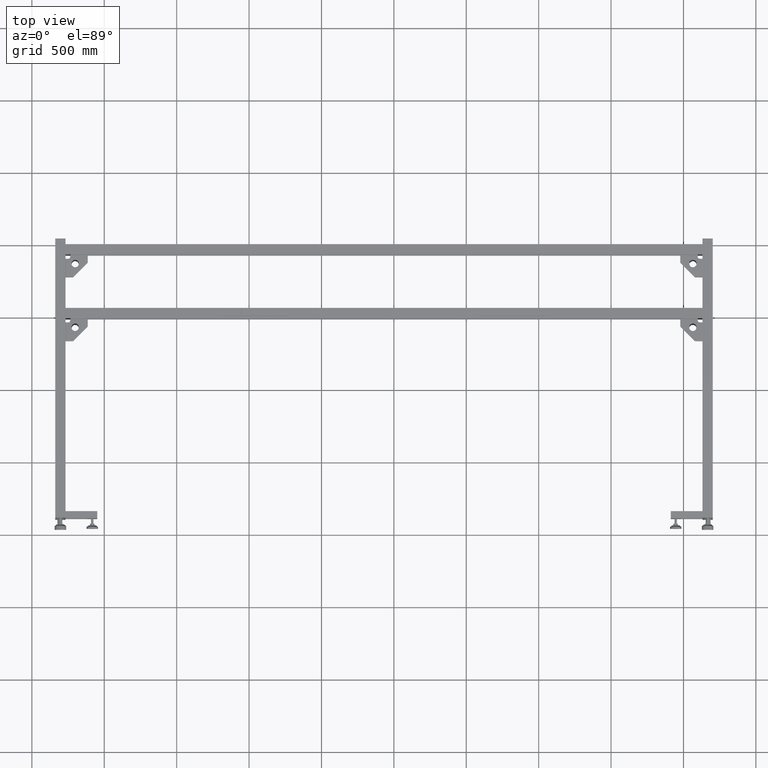
[diagram: clean part render]
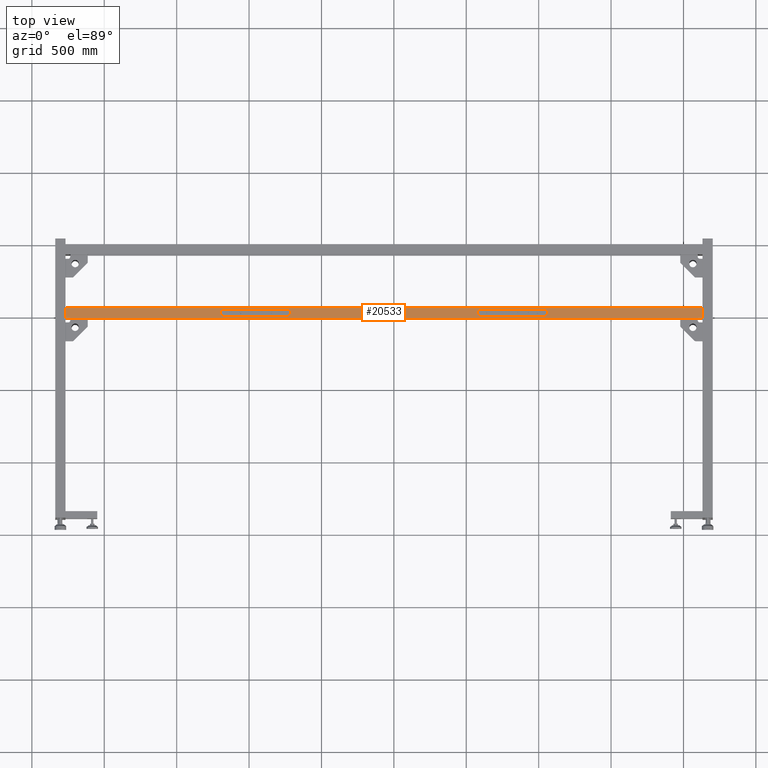
[diagram: same view with one face highlighted and labeled with its STEP entity id]
A machine part, top view. The second image highlights one B-rep face of the part: STEP entity #20533.
In plain terms, the highlighted planar face has unit normal (0, 0, -1).
Its self-contained STEP definition (entity closure, byte-faithful):
#39 = CARTESIAN_POINT ( 'NONE',  ( 2054.827512562816537, 516.9410804020112664, 300.0000000000000000 ) ) ;
#43 = DIRECTION ( 'NONE',  ( -1.000000000000000000, -0.000000000000000000, 0.000000000000000000 ) ) ;
#171 = CARTESIAN_POINT ( 'NONE',  ( 273.8275125628138085, 516.9410804020108117, 300.0000000000000000 ) ) ;
#370 = VERTEX_POINT ( 'NONE', #8050 ) ;
#417 = ORIENTED_EDGE ( 'NONE', *, *, #73845, .T. ) ;
#582 = LINE ( 'NONE', #25557, #76562 ) ;
#592 = EDGE_CURVE ( 'NONE', #370, #1744, #17395, .T. ) ;
#631 = VECTOR ( 'NONE', #70821, 1000.000000000000000 ) ;
#682 = VECTOR ( 'NONE', #66665, 1000.000000000000000 ) ;
#709 = ORIENTED_EDGE ( 'NONE', *, *, #79897, .T. ) ;
#721 = EDGE_CURVE ( 'NONE', #8913, #61710, #50116, .T. ) ;
#1045 = VERTEX_POINT ( 'NONE', #12369 ) ;
#1185 = VECTOR ( 'NONE', #35818, 1000.000000000000000 ) ;
#1264 = ORIENTED_EDGE ( 'NONE', *, *, #59474, .F. ) ;
#1292 = EDGE_CURVE ( 'NONE', #32178, #6360, #40889, .T. ) ;
#1403 = DIRECTION ( 'NONE',  ( -1.035296940874237648E-30, 2.999999999999999839E-15, -1.000000000000000000 ) ) ;
#1584 = CIRCLE ( 'NONE', #29016, 2.600000000000046718 ) ;
#1663 = ORIENTED_EDGE ( 'NONE', *, *, #78849, .F. ) ;
#1712 = EDGE_CURVE ( 'NONE', #49883, #8913, #34236, .T. ) ;
#1744 = VERTEX_POINT ( 'NONE', #41996 ) ;
#2129 = DIRECTION ( 'NONE',  ( 0.000000000000000000, -1.000000000000000000, 0.000000000000000000 ) ) ;
#2246 = EDGE_CURVE ( 'NONE', #67937, #50732, #68344, .T. ) ;
#2327 = CARTESIAN_POINT ( 'NONE',  ( 2041.827512562816764, 546.4410804020112664, 300.0000000000000568 ) ) ;
#2343 = AXIS2_PLACEMENT_3D ( 'NONE', #171, #37421, #73844 ) ;
#2365 = EDGE_CURVE ( 'NONE', #12435, #30571, #44310, .T. ) ;
#2399 = CIRCLE ( 'NONE', #27245, 2.600000000000046718 ) ;
#2501 = FACE_BOUND ( 'NONE', #21742, .T. ) ;
#2547 = AXIS2_PLACEMENT_3D ( 'NONE', #31817, #26501, #7258 ) ;
#2589 = CARTESIAN_POINT ( 'NONE',  ( 274.8275125628136948, 537.9410804020139949, 300.0000000000000568 ) ) ;
#2628 = EDGE_CURVE ( 'NONE', #5057, #61710, #50073, .T. ) ;
#2673 = LINE ( 'NONE', #26424, #8887 ) ;
#2749 = EDGE_CURVE ( 'NONE', #4048, #40761, #68743, .T. ) ;
#2927 = DIRECTION ( 'NONE',  ( 1.183016475227565433E-14, -1.000000000000000000, -3.957088814332020186E-15 ) ) ;
#2988 = CIRCLE ( 'NONE', #12093, 2.600000000000046718 ) ;
#2998 = AXIS2_PLACEMENT_3D ( 'NONE', #5029, #47242, #16515 ) ;
#3016 = DIRECTION ( 'NONE',  ( 8.326672684688670898E-15, -1.000000000000000000, -2.999999999999999839E-15 ) ) ;
#3100 = DIRECTION ( 'NONE',  ( -1.035296940874237648E-30, 2.999999999999999839E-15, -1.000000000000000000 ) ) ;
#3118 = EDGE_CURVE ( 'NONE', #27731, #11802, #16197, .T. ) ;
#3126 = CARTESIAN_POINT ( 'NONE',  ( -187.1724874371862768, 535.3410804020107889, 300.0000000000000568 ) ) ;
#3485 = AXIS2_PLACEMENT_3D ( 'NONE', #54700, #79634, #53892 ) ;
#3633 = CARTESIAN_POINT ( 'NONE',  ( 2054.827512562816537, 526.9410804020112664, 300.0000000000000568 ) ) ;
#4020 = EDGE_LOOP ( 'NONE', ( #57272, #41109, #38458, #52919 ) ) ;
#4048 = VERTEX_POINT ( 'NONE', #30584 ) ;
#4117 = VERTEX_POINT ( 'NONE', #27710 ) ;
#4120 = VERTEX_POINT ( 'NONE', #76368 ) ;
#4132 = DIRECTION ( 'NONE',  ( 0.000000000000000000, -1.000000000000000000, 0.000000000000000000 ) ) ;
#4842 = VECTOR ( 'NONE', #75769, 1000.000000000000000 ) ;
#4894 = CARTESIAN_POINT ( 'NONE',  ( 2429.827512562815627, 556.9410804020112664, 300.0000000000001137 ) ) ;
#5016 = LINE ( 'NONE', #54953, #70289 ) ;
#5019 = ORIENTED_EDGE ( 'NONE', *, *, #14925, .T. ) ;
#5029 = CARTESIAN_POINT ( 'NONE',  ( 1589.827512562816537, 516.9410804020110390, 300.0000000000000000 ) ) ;
#5057 = VERTEX_POINT ( 'NONE', #3633 ) ;
#5572 = ORIENTED_EDGE ( 'NONE', *, *, #47312, .F. ) ;
#5731 = DIRECTION ( 'NONE',  ( -1.000000000000000000, 1.092267369640097868E-16, 0.000000000000000000 ) ) ;
#5739 = DIRECTION ( 'NONE',  ( -1.035296940874237648E-30, 2.999999999999999839E-15, -1.000000000000000000 ) ) ;
#5833 = DIRECTION ( 'NONE',  ( -1.000000000000000000, 1.092267369640097868E-16, 0.000000000000000000 ) ) ;
#6360 = VERTEX_POINT ( 'NONE', #71694 ) ;
#6388 = CARTESIAN_POINT ( 'NONE',  ( 1589.827512562816537, 531.9410804020110390, 300.0000000000000568 ) ) ;
#6748 = CIRCLE ( 'NONE', #52507, 2.600000000000046718 ) ;
#6749 = CARTESIAN_POINT ( 'NONE',  ( -186.1724874371861631, 516.9410804020108117, 300.0000000000000000 ) ) ;
#7258 = DIRECTION ( 'NONE',  ( 0.000000000000000000, -1.000000000000000000, 0.000000000000000000 ) ) ;
#7853 = CARTESIAN_POINT ( 'NONE',  ( 2049.827512562816537, 531.9410804020112664, 300.0000000000000568 ) ) ;
#7883 = EDGE_CURVE ( 'NONE', #18050, #15926, #5016, .T. ) ;
#8050 = CARTESIAN_POINT ( 'NONE',  ( -186.1724874371861631, 511.9410804020108117, 299.9999999999999432 ) ) ;
#8381 = AXIS2_PLACEMENT_3D ( 'NONE', #38726, #3100, #51826 ) ;
#8575 = DIRECTION ( 'NONE',  ( -1.035296940874237648E-30, 2.999999999999999839E-15, -1.000000000000000000 ) ) ;
#8689 = CARTESIAN_POINT ( 'NONE',  ( -1266.172487437185964, 486.9410804020108117, 299.9999999999998863 ) ) ;
#8887 = VECTOR ( 'NONE', #20695, 1000.000000000000000 ) ;
#8913 = VERTEX_POINT ( 'NONE', #16113 ) ;
#9463 = EDGE_CURVE ( 'NONE', #56099, #4120, #74469, .T. ) ;
#9667 = DIRECTION ( 'NONE',  ( 0.000000000000000000, 1.000000000000000000, 0.000000000000000000 ) ) ;
#9787 = ORIENTED_EDGE ( 'NONE', *, *, #21536, .F. ) ;
#9832 = EDGE_LOOP ( 'NONE', ( #25172, #47207 ) ) ;
#9896 = ORIENTED_EDGE ( 'NONE', *, *, #22224, .F. ) ;
#9926 = DIRECTION ( 'NONE',  ( 0.000000000000000000, -1.000000000000000000, 0.000000000000000000 ) ) ;
#10073 = DIRECTION ( 'NONE',  ( 1.000000000000000000, 3.450989802914125775E-16, 0.000000000000000000 ) ) ;
#10197 = LINE ( 'NONE', #66258, #682 ) ;
#10448 = AXIS2_PLACEMENT_3D ( 'NONE', #2589, #27573, #52526 ) ;
#10490 = ORIENTED_EDGE ( 'NONE', *, *, #33100, .F. ) ;
#10907 = EDGE_CURVE ( 'NONE', #46456, #45400, #69833, .T. ) ;
#11019 = ORIENTED_EDGE ( 'NONE', *, *, #9463, .T. ) ;
#11036 = FACE_BOUND ( 'NONE', #9832, .T. ) ;
#11244 = CARTESIAN_POINT ( 'NONE',  ( -178.1724874371861631, 546.4410804020108117, 300.0000000000000568 ) ) ;
#11359 = CARTESIAN_POINT ( 'NONE',  ( -178.1724874371861631, 497.4410804020108117, 299.9999999999999432 ) ) ;
#11802 = VERTEX_POINT ( 'NONE', #65222 ) ;
#11863 = VERTEX_POINT ( 'NONE', #34502 ) ;
#11935 = EDGE_CURVE ( 'NONE', #66057, #77684, #1584, .T. ) ;
#12093 = AXIS2_PLACEMENT_3D ( 'NONE', #17126, #78141, #35547 ) ;
#12241 = DIRECTION ( 'NONE',  ( -1.092267369640097868E-16, -1.000000000000000000, -3.396508223080412663E-15 ) ) ;
#12369 = CARTESIAN_POINT ( 'NONE',  ( 2041.827512562816764, 497.4410804020112096, 299.9999999999999432 ) ) ;
#12414 = ORIENTED_EDGE ( 'NONE', *, *, #46702, .F. ) ;
#12435 = VERTEX_POINT ( 'NONE', #49802 ) ;
#12562 = CARTESIAN_POINT ( 'NONE',  ( 2054.827512562816537, 511.9410804020112664, 299.9999999999999432 ) ) ;
#12681 = CARTESIAN_POINT ( 'NONE',  ( 265.8275125628138085, 531.9410804020108117, 300.0000000000000568 ) ) ;
#13219 = CIRCLE ( 'NONE', #55046, 2.600000000000046718 ) ;
#13516 = VERTEX_POINT ( 'NONE', #35610 ) ;
#13598 = CARTESIAN_POINT ( 'NONE',  ( -178.1724874371861631, 497.4410804020108117, 299.9999999999999432 ) ) ;
#13599 = VERTEX_POINT ( 'NONE', #62184 ) ;
#13697 = EDGE_CURVE ( 'NONE', #21257, #4117, #42976, .T. ) ;
#13931 = EDGE_LOOP ( 'NONE', ( #31895, #30169 ) ) ;
#13951 = CARTESIAN_POINT ( 'NONE',  ( 265.8275125628138085, 531.9410804020108117, 300.0000000000000568 ) ) ;
#14041 = DIRECTION ( 'NONE',  ( 1.035296940874237648E-30, -2.999999999999999839E-15, 1.000000000000000000 ) ) ;
#14925 = EDGE_CURVE ( 'NONE', #13516, #21949, #13219, .T. ) ;
#15450 = DIRECTION ( 'NONE',  ( 0.000000000000000000, 1.000000000000000000, 0.000000000000000000 ) ) ;
#15833 = ORIENTED_EDGE ( 'NONE', *, *, #1292, .F. ) ;
#15926 = VERTEX_POINT ( 'NONE', #11244 ) ;
#16113 = CARTESIAN_POINT ( 'NONE',  ( 2041.827512562816764, 531.9410804020112664, 300.0000000000000568 ) ) ;
#16197 = CIRCLE ( 'NONE', #8381, 2.600000000000046718 ) ;
#16295 = AXIS2_PLACEMENT_3D ( 'NONE', #49545, #5739, #62217 ) ;
#16515 = DIRECTION ( 'NONE',  ( 0.000000000000000000, 1.000000000000000000, 0.000000000000000000 ) ) ;
#16578 = CIRCLE ( 'NONE', #59710, 5.000000000000004441 ) ;
#16853 = EDGE_CURVE ( 'NONE', #21949, #13516, #26613, .T. ) ;
#17126 = CARTESIAN_POINT ( 'NONE',  ( -187.1724874371862768, 505.9410804020108117, 299.9999999999999432 ) ) ;
#17340 = VECTOR ( 'NONE', #10073, 1000.000000000000000 ) ;
#17395 = LINE ( 'NONE', #48917, #1185 ) ;
#17583 = ORIENTED_EDGE ( 'NONE', *, *, #75935, .T. ) ;
#17986 = FACE_BOUND ( 'NONE', #13931, .T. ) ;
#18050 = VERTEX_POINT ( 'NONE', #30294 ) ;
#18134 = CARTESIAN_POINT ( 'NONE',  ( 1588.827512562816537, 505.9410804020141086, 299.9999999999999432 ) ) ;
#18697 = DIRECTION ( 'NONE',  ( -1.000000000000000000, 1.406644989705434807E-14, 4.323464663203728341E-29 ) ) ;
#18732 = DIRECTION ( 'NONE',  ( 0.000000000000000000, 1.000000000000000000, 3.957088814332028864E-15 ) ) ;
#19414 = CARTESIAN_POINT ( 'NONE',  ( -191.1724874371862768, 516.9410804020108117, 300.0000000000000000 ) ) ;
#19633 = ORIENTED_EDGE ( 'NONE', *, *, #13697, .F. ) ;
#20533 = ADVANCED_FACE ( 'NONE', ( #39739, #64705, #34006, #2501, #11036, #35989, #30667, #17986, #67499, #29469, #49495 ), #62164, .F. ) ;
#20695 = DIRECTION ( 'NONE',  ( -3.450989802914125775E-16, 1.000000000000000000, 3.957088814332035175E-15 ) ) ;
#21257 = VERTEX_POINT ( 'NONE', #60681 ) ;
#21536 = EDGE_CURVE ( 'NONE', #68494, #42039, #76163, .T. ) ;
#21742 = EDGE_LOOP ( 'NONE', ( #53403, #27000 ) ) ;
#21949 = VERTEX_POINT ( 'NONE', #51951 ) ;
#22224 = EDGE_CURVE ( 'NONE', #67877, #46920, #74755, .T. ) ;
#22451 = VERTEX_POINT ( 'NONE', #55456 ) ;
#22789 = VECTOR ( 'NONE', #28078, 1000.000000000000000 ) ;
#22992 = CIRCLE ( 'NONE', #3485, 5.000000000000004441 ) ;
#23077 = CARTESIAN_POINT ( 'NONE',  ( 2054.827512562816537, 531.9410804020112664, 300.0000000000000568 ) ) ;
#23544 = DIRECTION ( 'NONE',  ( 3.828355257328120833E-15, -1.000000000000000000, -3.957088814332029653E-15 ) ) ;
#23674 = CIRCLE ( 'NONE', #36759, 2.600000000000046718 ) ;
#23760 = ORIENTED_EDGE ( 'NONE', *, *, #592, .F. ) ;
#24040 = DIRECTION ( 'NONE',  ( 0.000000000000000000, 2.999999999999999839E-15, -1.000000000000000000 ) ) ;
#24048 = EDGE_CURVE ( 'NONE', #4048, #12435, #59572, .T. ) ;
#24190 = DIRECTION ( 'NONE',  ( 0.000000000000000000, -1.000000000000000000, 0.000000000000000000 ) ) ;
#25172 = ORIENTED_EDGE ( 'NONE', *, *, #45979, .T. ) ;
#25453 = CARTESIAN_POINT ( 'NONE',  ( 273.8275125628138085, 511.9410804020108117, 299.9999999999999432 ) ) ;
#25557 = CARTESIAN_POINT ( 'NONE',  ( -191.1724874371862768, 531.9410804020108117, 300.0000000000000568 ) ) ;
#26372 = EDGE_CURVE ( 'NONE', #40761, #30571, #72587, .T. ) ;
#26424 = CARTESIAN_POINT ( 'NONE',  ( 1597.827512562816537, 546.4410804020110390, 300.0000000000000568 ) ) ;
#26501 = DIRECTION ( 'NONE',  ( -1.035296940874237648E-30, 2.999999999999999839E-15, -1.000000000000000000 ) ) ;
#26613 = CIRCLE ( 'NONE', #42256, 2.600000000000046718 ) ;
#26675 = VECTOR ( 'NONE', #5731, 1000.000000000000000 ) ;
#26735 = VERTEX_POINT ( 'NONE', #33149 ) ;
#27000 = ORIENTED_EDGE ( 'NONE', *, *, #3118, .T. ) ;
#27245 = AXIS2_PLACEMENT_3D ( 'NONE', #48605, #67824, #42881 ) ;
#27573 = DIRECTION ( 'NONE',  ( 0.000000000000000000, -2.999999999999999839E-15, 1.000000000000000000 ) ) ;
#27710 = CARTESIAN_POINT ( 'NONE',  ( -186.1724874371861631, 531.9410804020108117, 300.0000000000000568 ) ) ;
#27731 = VERTEX_POINT ( 'NONE', #56201 ) ;
#27818 = DIRECTION ( 'NONE',  ( 0.000000000000000000, 1.000000000000000000, 2.999999999999999839E-15 ) ) ;
#28078 = DIRECTION ( 'NONE',  ( 3.450989802914125775E-16, -1.000000000000000000, -3.396508223080412663E-15 ) ) ;
#28215 = CARTESIAN_POINT ( 'NONE',  ( 278.8275125628136948, 531.9410804020108117, 300.0000000000000568 ) ) ;
#28669 = EDGE_CURVE ( 'NONE', #13599, #71147, #2673, .T. ) ;
#28768 = DIRECTION ( 'NONE',  ( 0.000000000000000000, -2.999999999999999839E-15, 1.000000000000000000 ) ) ;
#29016 = AXIS2_PLACEMENT_3D ( 'NONE', #73231, #30669, #67905 ) ;
#29033 = LINE ( 'NONE', #53977, #48722 ) ;
#29060 = CIRCLE ( 'NONE', #39510, 2.600000000000046718 ) ;
#29270 = EDGE_CURVE ( 'NONE', #11802, #27731, #53455, .T. ) ;
#29448 = VECTOR ( 'NONE', #70387, 1000.000000000000000 ) ;
#29469 = FACE_BOUND ( 'NONE', #53878, .T. ) ;
#30027 = VECTOR ( 'NONE', #37651, 1000.000000000000000 ) ;
#30095 = LINE ( 'NONE', #79201, #17340 ) ;
#30152 = CARTESIAN_POINT ( 'NONE',  ( 1589.827512562816537, 511.9410804020110390, 299.9999999999999432 ) ) ;
#30169 = ORIENTED_EDGE ( 'NONE', *, *, #80774, .F. ) ;
#30294 = CARTESIAN_POINT ( 'NONE',  ( 265.8275125628138085, 546.4410804020108117, 300.0000000000000568 ) ) ;
#30571 = VERTEX_POINT ( 'NONE', #8689 ) ;
#30584 = CARTESIAN_POINT ( 'NONE',  ( 3129.827512562816537, 556.9410804020114938, 300.0000000000001137 ) ) ;
#30667 = FACE_BOUND ( 'NONE', #44921, .T. ) ;
#30669 = DIRECTION ( 'NONE',  ( 0.000000000000000000, -2.999999999999999839E-15, 1.000000000000000000 ) ) ;
#31227 = DIRECTION ( 'NONE',  ( -1.035296940874237648E-30, 2.999999999999999839E-15, -1.000000000000000000 ) ) ;
#31817 = CARTESIAN_POINT ( 'NONE',  ( 2050.827512562816537, 537.9410804020112664, 300.0000000000000568 ) ) ;
#31895 = ORIENTED_EDGE ( 'NONE', *, *, #75055, .F. ) ;
#32039 = CARTESIAN_POINT ( 'NONE',  ( 1589.827512562816537, 526.9410804020110390, 300.0000000000000568 ) ) ;
#32178 = VERTEX_POINT ( 'NONE', #33163 ) ;
#32195 = ORIENTED_EDGE ( 'NONE', *, *, #74559, .T. ) ;
#32239 = VECTOR ( 'NONE', #47704, 1000.000000000000000 ) ;
#32411 = CARTESIAN_POINT ( 'NONE',  ( 265.8275125628138085, 511.9410804020108117, 299.9999999999999432 ) ) ;
#32439 = CARTESIAN_POINT ( 'NONE',  ( -187.1724874371862768, 537.9410804020108117, 300.0000000000000568 ) ) ;
#32646 = CIRCLE ( 'NONE', #10448, 2.600000000000046718 ) ;
#32811 = CARTESIAN_POINT ( 'NONE',  ( 274.8275125628136948, 535.3410804020138585, 300.0000000000000568 ) ) ;
#33100 = EDGE_CURVE ( 'NONE', #71318, #52098, #23674, .T. ) ;
#33149 = CARTESIAN_POINT ( 'NONE',  ( 274.8275125628136948, 540.5410804020141313, 300.0000000000000568 ) ) ;
#33163 = CARTESIAN_POINT ( 'NONE',  ( 278.8275125628136948, 516.9410804020108117, 300.0000000000000000 ) ) ;
#33234 = VERTEX_POINT ( 'NONE', #74911 ) ;
#33237 = EDGE_CURVE ( 'NONE', #58813, #66969, #38094, .T. ) ;
#33544 = DIRECTION ( 'NONE',  ( 0.000000000000000000, -1.000000000000000000, 0.000000000000000000 ) ) ;
#33746 = DIRECTION ( 'NONE',  ( -3.450989802914125775E-16, 1.000000000000000000, 2.999999999999999839E-15 ) ) ;
#34006 = FACE_BOUND ( 'NONE', #68759, .T. ) ;
#34236 = LINE ( 'NONE', #2327, #46075 ) ;
#34502 = CARTESIAN_POINT ( 'NONE',  ( -191.1724874371862768, 526.9410804020108117, 300.0000000000000568 ) ) ;
#34655 = CARTESIAN_POINT ( 'NONE',  ( 2041.827512562816764, 511.9410804020112664, 299.9999999999999432 ) ) ;
#35067 = DIRECTION ( 'NONE',  ( 0.000000000000000000, 2.999999999999999839E-15, -1.000000000000000000 ) ) ;
#35164 = AXIS2_PLACEMENT_3D ( 'NONE', #49159, #62238, #67579 ) ;
#35547 = DIRECTION ( 'NONE',  ( 0.000000000000000000, -1.000000000000000000, 0.000000000000000000 ) ) ;
#35610 = CARTESIAN_POINT ( 'NONE',  ( 2050.827512562816537, 503.3410804020113005, 299.9999999999999432 ) ) ;
#35633 = DIRECTION ( 'NONE',  ( 0.000000000000000000, -2.999999999999999839E-15, 1.000000000000000000 ) ) ;
#35818 = DIRECTION ( 'NONE',  ( 1.000000000000000000, 1.441154887734576138E-14, 4.323464663203728341E-29 ) ) ;
#35845 = VERTEX_POINT ( 'NONE', #44655 ) ;
#35989 = FACE_BOUND ( 'NONE', #63267, .T. ) ;
#36183 = CIRCLE ( 'NONE', #55830, 5.000000000000004441 ) ;
#36222 = CARTESIAN_POINT ( 'NONE',  ( 273.8275125628138085, 526.9410804020108117, 300.0000000000000568 ) ) ;
#36324 = DIRECTION ( 'NONE',  ( 1.000000000000000000, 6.251255769285789110E-17, 1.875376730785736675E-31 ) ) ;
#36602 = VECTOR ( 'NONE', #33746, 1000.000000000000000 ) ;
#36622 = ORIENTED_EDGE ( 'NONE', *, *, #28669, .T. ) ;
#36759 = AXIS2_PLACEMENT_3D ( 'NONE', #42626, #67585, #24190 ) ;
#37179 = ORIENTED_EDGE ( 'NONE', *, *, #62576, .F. ) ;
#37421 = DIRECTION ( 'NONE',  ( 0.000000000000000000, 2.999999999999999839E-15, -1.000000000000000000 ) ) ;
#37424 = EDGE_LOOP ( 'NONE', ( #1264, #59180 ) ) ;
#37651 = DIRECTION ( 'NONE',  ( -3.450989802914125775E-16, 1.000000000000000000, 3.957088814332028864E-15 ) ) ;
#37654 = CARTESIAN_POINT ( 'NONE',  ( 2429.827512562815627, 556.9410804020112664, 300.0000000000001137 ) ) ;
#37808 = ORIENTED_EDGE ( 'NONE', *, *, #43906, .T. ) ;
#37830 = EDGE_LOOP ( 'NONE', ( #62439, #44914 ) ) ;
#38094 = LINE ( 'NONE', #13951, #74719 ) ;
#38453 = CARTESIAN_POINT ( 'NONE',  ( 1597.827512562816537, 511.9410804020110390, 299.9999999999999432 ) ) ;
#38458 = ORIENTED_EDGE ( 'NONE', *, *, #2749, .T. ) ;
#38726 = CARTESIAN_POINT ( 'NONE',  ( 1588.827512562816537, 537.9410804020141086, 300.0000000000000568 ) ) ;
#38786 = CARTESIAN_POINT ( 'NONE',  ( 2049.827512562816537, 511.9410804020112664, 299.9999999999999432 ) ) ;
#39497 = VERTEX_POINT ( 'NONE', #39 ) ;
#39510 = AXIS2_PLACEMENT_3D ( 'NONE', #32439, #63938, #2129 ) ;
#39739 = FACE_OUTER_BOUND ( 'NONE', #4020, .T. ) ;
#39767 = EDGE_CURVE ( 'NONE', #1045, #56099, #65103, .T. ) ;
#40037 = AXIS2_PLACEMENT_3D ( 'NONE', #4894, #42147, #12241 ) ;
#40761 = VERTEX_POINT ( 'NONE', #49687 ) ;
#40889 = LINE ( 'NONE', #28215, #45270 ) ;
#40977 = AXIS2_PLACEMENT_3D ( 'NONE', #66162, #35067, #15450 ) ;
#41109 = ORIENTED_EDGE ( 'NONE', *, *, #24048, .F. ) ;
#41138 = CIRCLE ( 'NONE', #16295, 2.600000000000046718 ) ;
#41194 = VECTOR ( 'NONE', #48405, 1000.000000000000000 ) ;
#41372 = CARTESIAN_POINT ( 'NONE',  ( 274.8275125628136948, 508.5410804020140745, 299.9999999999999432 ) ) ;
#41578 = CARTESIAN_POINT ( 'NONE',  ( -187.1724874371862768, 508.5410804020107207, 299.9999999999999432 ) ) ;
#41996 = CARTESIAN_POINT ( 'NONE',  ( -178.1724874371861631, 511.9410804020108117, 299.9999999999999432 ) ) ;
#42039 = VERTEX_POINT ( 'NONE', #25453 ) ;
#42147 = DIRECTION ( 'NONE',  ( 3.709895102785004465E-31, 3.396508223080412663E-15, -1.000000000000000000 ) ) ;
#42256 = AXIS2_PLACEMENT_3D ( 'NONE', #61679, #68213, #73534 ) ;
#42626 = CARTESIAN_POINT ( 'NONE',  ( 274.8275125628136948, 505.9410804020138812, 299.9999999999999432 ) ) ;
#42738 = ORIENTED_EDGE ( 'NONE', *, *, #70513, .T. ) ;
#42881 = DIRECTION ( 'NONE',  ( 0.000000000000000000, -1.000000000000000000, 0.000000000000000000 ) ) ;
#42976 = LINE ( 'NONE', #61394, #67888 ) ;
#43906 = EDGE_CURVE ( 'NONE', #53291, #79818, #58765, .T. ) ;
#44291 = CARTESIAN_POINT ( 'NONE',  ( 1597.827512562816537, 546.4410804020110390, 300.0000000000000568 ) ) ;
#44310 = LINE ( 'NONE', #61899, #76229 ) ;
#44655 = CARTESIAN_POINT ( 'NONE',  ( 1584.827512562816537, 526.9410804020110390, 300.0000000000000568 ) ) ;
#44914 = ORIENTED_EDGE ( 'NONE', *, *, #11935, .F. ) ;
#44921 = EDGE_LOOP ( 'NONE', ( #19633, #37179, #73647, #53400, #70340, #73228, #15833, #42738, #9787, #49452, #9896, #58943, #23760, #709, #1663, #17583 ) ) ;
#45155 = AXIS2_PLACEMENT_3D ( 'NONE', #18134, #31227, #79524 ) ;
#45215 = CARTESIAN_POINT ( 'NONE',  ( 1588.827512562816537, 505.9410804020141086, 299.9999999999999432 ) ) ;
#45270 = VECTOR ( 'NONE', #27818, 1000.000000000000000 ) ;
#45400 = VERTEX_POINT ( 'NONE', #34655 ) ;
#45871 = EDGE_CURVE ( 'NONE', #5057, #39497, #53781, .T. ) ;
#45979 = EDGE_CURVE ( 'NONE', #22451, #33234, #70020, .T. ) ;
#46075 = VECTOR ( 'NONE', #58814, 1000.000000000000000 ) ;
#46456 = VERTEX_POINT ( 'NONE', #38786 ) ;
#46537 = ORIENTED_EDGE ( 'NONE', *, *, #2246, .F. ) ;
#46659 = CARTESIAN_POINT ( 'NONE',  ( 1597.827512562816537, 511.9410804020110390, 299.9999999999999432 ) ) ;
#46702 = EDGE_CURVE ( 'NONE', #46456, #39497, #22992, .T. ) ;
#46920 = VERTEX_POINT ( 'NONE', #51371 ) ;
#47045 = VECTOR ( 'NONE', #2927, 1000.000000000000000 ) ;
#47207 = ORIENTED_EDGE ( 'NONE', *, *, #62823, .T. ) ;
#47242 = DIRECTION ( 'NONE',  ( 1.035296940874237648E-30, -2.999999999999999839E-15, 1.000000000000000000 ) ) ;
#47312 = EDGE_CURVE ( 'NONE', #53955, #35845, #36183, .T. ) ;
#47542 = DIRECTION ( 'NONE',  ( 1.035296940874237648E-30, -2.999999999999999839E-15, 1.000000000000000000 ) ) ;
#47704 = DIRECTION ( 'NONE',  ( 0.000000000000000000, 1.000000000000000000, 3.957088814332035175E-15 ) ) ;
#48131 = VECTOR ( 'NONE', #49719, 1000.000000000000000 ) ;
#48171 = CARTESIAN_POINT ( 'NONE',  ( 2050.827512562816537, 535.3410804020112437, 300.0000000000000568 ) ) ;
#48405 = DIRECTION ( 'NONE',  ( 1.000000000000000000, 2.825864225985546864E-16, -1.875376730785736675E-31 ) ) ;
#48605 = CARTESIAN_POINT ( 'NONE',  ( 274.8275125628136948, 505.9410804020138812, 299.9999999999999432 ) ) ;
#48722 = VECTOR ( 'NONE', #18732, 1000.000000000000000 ) ;
#48917 = CARTESIAN_POINT ( 'NONE',  ( -191.1724874371862768, 511.9410804020108117, 299.9999999999999432 ) ) ;
#49100 = VECTOR ( 'NONE', #59132, 1000.000000000000000 ) ;
#49159 = CARTESIAN_POINT ( 'NONE',  ( 1588.827512562816537, 537.9410804020141086, 300.0000000000000568 ) ) ;
#49302 = ORIENTED_EDGE ( 'NONE', *, *, #64725, .T. ) ;
#49452 = ORIENTED_EDGE ( 'NONE', *, *, #75592, .F. ) ;
#49467 = CIRCLE ( 'NONE', #67751, 5.000000000000004441 ) ;
#49495 = FACE_BOUND ( 'NONE', #37830, .T. ) ;
#49507 = VECTOR ( 'NONE', #36324, 1000.000000000000000 ) ;
#49545 = CARTESIAN_POINT ( 'NONE',  ( 2050.827512562816537, 537.9410804020112664, 300.0000000000000568 ) ) ;
#49687 = CARTESIAN_POINT ( 'NONE',  ( -1266.172487437185964, 556.9410804020106980, 300.0000000000001137 ) ) ;
#49719 = DIRECTION ( 'NONE',  ( 1.000000000000000000, 3.450989802914125775E-16, 0.000000000000000000 ) ) ;
#49752 = ORIENTED_EDGE ( 'NONE', *, *, #2628, .F. ) ;
#49802 = CARTESIAN_POINT ( 'NONE',  ( 3129.827512562816537, 486.9410804020115506, 299.9999999999998863 ) ) ;
#49883 = VERTEX_POINT ( 'NONE', #62343 ) ;
#50073 = CIRCLE ( 'NONE', #77541, 5.000000000000004441 ) ;
#50116 = LINE ( 'NONE', #75878, #48131 ) ;
#50178 = ORIENTED_EDGE ( 'NONE', *, *, #39767, .T. ) ;
#50690 = CIRCLE ( 'NONE', #57248, 2.600000000000046718 ) ;
#50732 = VERTEX_POINT ( 'NONE', #30152 ) ;
#50899 = EDGE_LOOP ( 'NONE', ( #67855, #49752, #71427, #12414, #71759, #417, #50178, #11019, #72800, #46537, #32195, #5572, #55645, #36622, #53486, #73174 ) ) ;
#51344 = DIRECTION ( 'NONE',  ( 0.000000000000000000, 1.000000000000000000, 0.000000000000000000 ) ) ;
#51371 = CARTESIAN_POINT ( 'NONE',  ( 265.8275125628138085, 497.4410804020108117, 299.9999999999999432 ) ) ;
#51826 = DIRECTION ( 'NONE',  ( 0.000000000000000000, -1.000000000000000000, 0.000000000000000000 ) ) ;
#51951 = CARTESIAN_POINT ( 'NONE',  ( 2050.827512562816537, 508.5410804020111755, 299.9999999999999432 ) ) ;
#52098 = VERTEX_POINT ( 'NONE', #57950 ) ;
#52479 = CARTESIAN_POINT ( 'NONE',  ( -187.1724874371862768, 540.5410804020107207, 300.0000000000000568 ) ) ;
#52507 = AXIS2_PLACEMENT_3D ( 'NONE', #45215, #1403, #63208 ) ;
#52526 = DIRECTION ( 'NONE',  ( 0.000000000000000000, -1.000000000000000000, 0.000000000000000000 ) ) ;
#52919 = ORIENTED_EDGE ( 'NONE', *, *, #26372, .T. ) ;
#53291 = VERTEX_POINT ( 'NONE', #48171 ) ;
#53308 = CARTESIAN_POINT ( 'NONE',  ( -187.1724874371862768, 537.9410804020108117, 300.0000000000000568 ) ) ;
#53400 = ORIENTED_EDGE ( 'NONE', *, *, #55462, .F. ) ;
#53403 = ORIENTED_EDGE ( 'NONE', *, *, #29270, .T. ) ;
#53455 = CIRCLE ( 'NONE', #35164, 2.600000000000046718 ) ;
#53468 = CARTESIAN_POINT ( 'NONE',  ( -178.1724874371861631, 546.4410804020108117, 300.0000000000000568 ) ) ;
#53486 = ORIENTED_EDGE ( 'NONE', *, *, #77915, .T. ) ;
#53660 = LINE ( 'NONE', #59406, #47045 ) ;
#53781 = LINE ( 'NONE', #23077, #49100 ) ;
#53783 = VECTOR ( 'NONE', #23544, 1000.000000000000000 ) ;
#53878 = EDGE_LOOP ( 'NONE', ( #77654, #10490 ) ) ;
#53892 = DIRECTION ( 'NONE',  ( 0.000000000000000000, 1.000000000000000000, 0.000000000000000000 ) ) ;
#53955 = VERTEX_POINT ( 'NONE', #6388 ) ;
#53977 = CARTESIAN_POINT ( 'NONE',  ( 265.8275125628138085, 511.9410804020108117, 299.9999999999999432 ) ) ;
#54700 = CARTESIAN_POINT ( 'NONE',  ( 2049.827512562816537, 516.9410804020112664, 300.0000000000000000 ) ) ;
#54953 = CARTESIAN_POINT ( 'NONE',  ( -178.1724874371861631, 546.4410804020108117, 300.0000000000000568 ) ) ;
#55046 = AXIS2_PLACEMENT_3D ( 'NONE', #63829, #8575, #33544 ) ;
#55456 = CARTESIAN_POINT ( 'NONE',  ( 1588.827512562816537, 503.3410804020141995, 299.9999999999999432 ) ) ;
#55462 = EDGE_CURVE ( 'NONE', #66969, #18050, #77985, .T. ) ;
#55645 = ORIENTED_EDGE ( 'NONE', *, *, #66076, .T. ) ;
#55830 = AXIS2_PLACEMENT_3D ( 'NONE', #32039, #14041, #58638 ) ;
#56099 = VERTEX_POINT ( 'NONE', #69620 ) ;
#56201 = CARTESIAN_POINT ( 'NONE',  ( 1588.827512562816537, 540.5410804020143587, 300.0000000000000568 ) ) ;
#57248 = AXIS2_PLACEMENT_3D ( 'NONE', #53308, #28768, #9926 ) ;
#57272 = ORIENTED_EDGE ( 'NONE', *, *, #2365, .F. ) ;
#57299 = LINE ( 'NONE', #46659, #29448 ) ;
#57950 = CARTESIAN_POINT ( 'NONE',  ( 274.8275125628136948, 503.3410804020139722, 299.9999999999999432 ) ) ;
#58638 = DIRECTION ( 'NONE',  ( 0.000000000000000000, 1.000000000000000000, 0.000000000000000000 ) ) ;
#58765 = CIRCLE ( 'NONE', #2547, 2.600000000000046718 ) ;
#58813 = VERTEX_POINT ( 'NONE', #66990 ) ;
#58814 = DIRECTION ( 'NONE',  ( -3.483256277036708305E-15, -1.000000000000000000, -3.957088814332029653E-15 ) ) ;
#58943 = ORIENTED_EDGE ( 'NONE', *, *, #68493, .F. ) ;
#59123 = CARTESIAN_POINT ( 'NONE',  ( 1584.827512562816537, 531.9410804020110390, 300.0000000000000568 ) ) ;
#59132 = DIRECTION ( 'NONE',  ( -7.981573704397257581E-15, -1.000000000000000000, -2.999999999999999839E-15 ) ) ;
#59180 = ORIENTED_EDGE ( 'NONE', *, *, #75106, .F. ) ;
#59406 = CARTESIAN_POINT ( 'NONE',  ( 2041.827512562816764, 511.9410804020112664, 299.9999999999999432 ) ) ;
#59474 = EDGE_CURVE ( 'NONE', #61711, #26735, #32646, .T. ) ;
#59572 = LINE ( 'NONE', #71437, #22789 ) ;
#59710 = AXIS2_PLACEMENT_3D ( 'NONE', #6749, #24040, #51344 ) ;
#59830 = CARTESIAN_POINT ( 'NONE',  ( 274.8275125628136948, 537.9410804020139949, 300.0000000000000568 ) ) ;
#59933 = DIRECTION ( 'NONE',  ( 0.000000000000000000, -1.000000000000000000, -3.396508223080412663E-15 ) ) ;
#60214 = CARTESIAN_POINT ( 'NONE',  ( 2049.827512562816537, 526.9410804020112664, 300.0000000000000568 ) ) ;
#60681 = CARTESIAN_POINT ( 'NONE',  ( -178.1724874371861631, 531.9410804020108117, 300.0000000000000568 ) ) ;
#61394 = CARTESIAN_POINT ( 'NONE',  ( -191.1724874371862768, 531.9410804020108117, 300.0000000000000568 ) ) ;
#61679 = CARTESIAN_POINT ( 'NONE',  ( 2050.827512562816537, 505.9410804020112664, 299.9999999999999432 ) ) ;
#61710 = VERTEX_POINT ( 'NONE', #7853 ) ;
#61711 = VERTEX_POINT ( 'NONE', #32811 ) ;
#61899 = CARTESIAN_POINT ( 'NONE',  ( 2429.827512562815627, 486.9410804020112664, 299.9999999999998863 ) ) ;
#62164 = PLANE ( 'NONE',  #40037 ) ;
#62184 = CARTESIAN_POINT ( 'NONE',  ( 1597.827512562816537, 531.9410804020110390, 300.0000000000000568 ) ) ;
#62217 = DIRECTION ( 'NONE',  ( 0.000000000000000000, -1.000000000000000000, 0.000000000000000000 ) ) ;
#62238 = DIRECTION ( 'NONE',  ( -1.035296940874237648E-30, 2.999999999999999839E-15, -1.000000000000000000 ) ) ;
#62343 = CARTESIAN_POINT ( 'NONE',  ( 2041.827512562816764, 546.4410804020112664, 300.0000000000000568 ) ) ;
#62439 = ORIENTED_EDGE ( 'NONE', *, *, #75530, .F. ) ;
#62576 = EDGE_CURVE ( 'NONE', #15926, #21257, #66549, .T. ) ;
#62823 = EDGE_CURVE ( 'NONE', #33234, #22451, #6748, .T. ) ;
#63208 = DIRECTION ( 'NONE',  ( 0.000000000000000000, -1.000000000000000000, 0.000000000000000000 ) ) ;
#63267 = EDGE_LOOP ( 'NONE', ( #5019, #77255 ) ) ;
#63829 = CARTESIAN_POINT ( 'NONE',  ( 2050.827512562816537, 505.9410804020112664, 299.9999999999999432 ) ) ;
#63938 = DIRECTION ( 'NONE',  ( 0.000000000000000000, -2.999999999999999839E-15, 1.000000000000000000 ) ) ;
#64346 = CIRCLE ( 'NONE', #74765, 2.600000000000046718 ) ;
#64705 = FACE_BOUND ( 'NONE', #50899, .T. ) ;
#64725 = EDGE_CURVE ( 'NONE', #79818, #53291, #41138, .T. ) ;
#64876 = VERTEX_POINT ( 'NONE', #19414 ) ;
#65042 = CIRCLE ( 'NONE', #2343, 5.000000000000004441 ) ;
#65103 = LINE ( 'NONE', #72416, #631 ) ;
#65222 = CARTESIAN_POINT ( 'NONE',  ( 1588.827512562816537, 535.3410804020140858, 300.0000000000000568 ) ) ;
#65731 = DIRECTION ( 'NONE',  ( 0.000000000000000000, 2.999999999999999839E-15, -1.000000000000000000 ) ) ;
#66057 = VERTEX_POINT ( 'NONE', #41578 ) ;
#66070 = VECTOR ( 'NONE', #59933, 1000.000000000000000 ) ;
#66076 = EDGE_CURVE ( 'NONE', #53955, #13599, #30095, .T. ) ;
#66162 = CARTESIAN_POINT ( 'NONE',  ( -186.1724874371861631, 526.9410804020108117, 300.0000000000000568 ) ) ;
#66258 = CARTESIAN_POINT ( 'NONE',  ( -178.1724874371861631, 511.9410804020108117, 299.9999999999999432 ) ) ;
#66549 = LINE ( 'NONE', #53468, #53783 ) ;
#66600 = VECTOR ( 'NONE', #18697, 1000.000000000000000 ) ;
#66645 = CARTESIAN_POINT ( 'NONE',  ( 2050.827512562816537, 540.5410804020111755, 300.0000000000000568 ) ) ;
#66665 = DIRECTION ( 'NONE',  ( -1.148506577198424101E-14, -1.000000000000000000, -3.957088814332020186E-15 ) ) ;
#66860 = CARTESIAN_POINT ( 'NONE',  ( -1266.172487437185964, 556.9410804020106980, 300.0000000000001137 ) ) ;
#66969 = VERTEX_POINT ( 'NONE', #12681 ) ;
#66990 = CARTESIAN_POINT ( 'NONE',  ( 273.8275125628138085, 531.9410804020108117, 300.0000000000000568 ) ) ;
#67499 = FACE_BOUND ( 'NONE', #37424, .T. ) ;
#67579 = DIRECTION ( 'NONE',  ( 0.000000000000000000, -1.000000000000000000, 0.000000000000000000 ) ) ;
#67585 = DIRECTION ( 'NONE',  ( 0.000000000000000000, -2.999999999999999839E-15, 1.000000000000000000 ) ) ;
#67751 = AXIS2_PLACEMENT_3D ( 'NONE', #36222, #65731, #9667 ) ;
#67824 = DIRECTION ( 'NONE',  ( 0.000000000000000000, -2.999999999999999839E-15, 1.000000000000000000 ) ) ;
#67855 = ORIENTED_EDGE ( 'NONE', *, *, #721, .T. ) ;
#67877 = VERTEX_POINT ( 'NONE', #13598 ) ;
#67888 = VECTOR ( 'NONE', #67925, 1000.000000000000000 ) ;
#67905 = DIRECTION ( 'NONE',  ( 0.000000000000000000, -1.000000000000000000, 0.000000000000000000 ) ) ;
#67925 = DIRECTION ( 'NONE',  ( -1.000000000000000000, -0.000000000000000000, 0.000000000000000000 ) ) ;
#67937 = VERTEX_POINT ( 'NONE', #70878 ) ;
#68213 = DIRECTION ( 'NONE',  ( -1.035296940874237648E-30, 2.999999999999999839E-15, -1.000000000000000000 ) ) ;
#68344 = CIRCLE ( 'NONE', #2998, 5.000000000000004441 ) ;
#68393 = EDGE_CURVE ( 'NONE', #4120, #50732, #57299, .T. ) ;
#68493 = EDGE_CURVE ( 'NONE', #1744, #67877, #10197, .T. ) ;
#68494 = VERTEX_POINT ( 'NONE', #73180 ) ;
#68743 = LINE ( 'NONE', #37654, #26675 ) ;
#68759 = EDGE_LOOP ( 'NONE', ( #37808, #49302 ) ) ;
#69620 = CARTESIAN_POINT ( 'NONE',  ( 1597.827512562816537, 497.4410804020110390, 299.9999999999999432 ) ) ;
#69725 = CARTESIAN_POINT ( 'NONE',  ( -187.1724874371862768, 503.3410804020108458, 299.9999999999999432 ) ) ;
#69833 = LINE ( 'NONE', #12562, #66600 ) ;
#70020 = CIRCLE ( 'NONE', #45155, 2.600000000000046718 ) ;
#70289 = VECTOR ( 'NONE', #79892, 1000.000000000000000 ) ;
#70340 = ORIENTED_EDGE ( 'NONE', *, *, #33237, .F. ) ;
#70387 = DIRECTION ( 'NONE',  ( -1.000000000000000000, 1.886620892399124623E-16, 1.601283208593974939E-30 ) ) ;
#70513 = EDGE_CURVE ( 'NONE', #32178, #42039, #65042, .T. ) ;
#70821 = DIRECTION ( 'NONE',  ( -1.000000000000000000, -2.825864225985546864E-16, 1.875376730785736675E-31 ) ) ;
#70878 = CARTESIAN_POINT ( 'NONE',  ( 1584.827512562816537, 516.9410804020110390, 300.0000000000000000 ) ) ;
#70982 = LINE ( 'NONE', #59123, #36602 ) ;
#71147 = VERTEX_POINT ( 'NONE', #44291 ) ;
#71318 = VERTEX_POINT ( 'NONE', #41372 ) ;
#71427 = ORIENTED_EDGE ( 'NONE', *, *, #45871, .T. ) ;
#71437 = CARTESIAN_POINT ( 'NONE',  ( 3129.827512562816537, 556.9410804020114938, 300.0000000000001137 ) ) ;
#71694 = CARTESIAN_POINT ( 'NONE',  ( 278.8275125628136948, 526.9410804020108117, 300.0000000000000568 ) ) ;
#71759 = ORIENTED_EDGE ( 'NONE', *, *, #10907, .T. ) ;
#71851 = CARTESIAN_POINT ( 'NONE',  ( 265.8275125628138085, 546.4410804020108117, 300.0000000000000568 ) ) ;
#72009 = VERTEX_POINT ( 'NONE', #3126 ) ;
#72322 = CIRCLE ( 'NONE', #40977, 5.000000000000004441 ) ;
#72416 = CARTESIAN_POINT ( 'NONE',  ( 2041.827512562816764, 497.4410804020112096, 299.9999999999999432 ) ) ;
#72477 = DIRECTION ( 'NONE',  ( 0.000000000000000000, 1.000000000000000000, 0.000000000000000000 ) ) ;
#72587 = LINE ( 'NONE', #66860, #66070 ) ;
#72651 = EDGE_CURVE ( 'NONE', #52098, #71318, #2399, .T. ) ;
#72800 = ORIENTED_EDGE ( 'NONE', *, *, #68393, .T. ) ;
#73007 = EDGE_CURVE ( 'NONE', #58813, #6360, #49467, .T. ) ;
#73174 = ORIENTED_EDGE ( 'NONE', *, *, #1712, .T. ) ;
#73180 = CARTESIAN_POINT ( 'NONE',  ( 265.8275125628138085, 511.9410804020108117, 299.9999999999999432 ) ) ;
#73228 = ORIENTED_EDGE ( 'NONE', *, *, #73007, .T. ) ;
#73231 = CARTESIAN_POINT ( 'NONE',  ( -187.1724874371862768, 505.9410804020108117, 299.9999999999999432 ) ) ;
#73534 = DIRECTION ( 'NONE',  ( 0.000000000000000000, -1.000000000000000000, 0.000000000000000000 ) ) ;
#73647 = ORIENTED_EDGE ( 'NONE', *, *, #7883, .F. ) ;
#73844 = DIRECTION ( 'NONE',  ( 0.000000000000000000, 1.000000000000000000, 0.000000000000000000 ) ) ;
#73845 = EDGE_CURVE ( 'NONE', #45400, #1045, #53660, .T. ) ;
#74469 = LINE ( 'NONE', #38453, #30027 ) ;
#74559 = EDGE_CURVE ( 'NONE', #67937, #35845, #70982, .T. ) ;
#74719 = VECTOR ( 'NONE', #43, 1000.000000000000000 ) ;
#74755 = LINE ( 'NONE', #11359, #49507 ) ;
#74765 = AXIS2_PLACEMENT_3D ( 'NONE', #59830, #35633, #4132 ) ;
#74911 = CARTESIAN_POINT ( 'NONE',  ( 1588.827512562816537, 508.5410804020143019, 299.9999999999999432 ) ) ;
#75016 = VERTEX_POINT ( 'NONE', #52479 ) ;
#75055 = EDGE_CURVE ( 'NONE', #72009, #75016, #29060, .T. ) ;
#75106 = EDGE_CURVE ( 'NONE', #26735, #61711, #64346, .T. ) ;
#75530 = EDGE_CURVE ( 'NONE', #77684, #66057, #2988, .T. ) ;
#75592 = EDGE_CURVE ( 'NONE', #46920, #68494, #29033, .T. ) ;
#75769 = DIRECTION ( 'NONE',  ( 1.000000000000000000, 5.337610695313250398E-16, 1.601283208593974939E-30 ) ) ;
#75878 = CARTESIAN_POINT ( 'NONE',  ( 2054.827512562816537, 531.9410804020112664, 300.0000000000000568 ) ) ;
#75935 = EDGE_CURVE ( 'NONE', #11863, #4117, #72322, .T. ) ;
#76163 = LINE ( 'NONE', #32411, #4842 ) ;
#76229 = VECTOR ( 'NONE', #5833, 1000.000000000000000 ) ;
#76368 = CARTESIAN_POINT ( 'NONE',  ( 1597.827512562816537, 511.9410804020110390, 299.9999999999999432 ) ) ;
#76562 = VECTOR ( 'NONE', #3016, 1000.000000000000000 ) ;
#77255 = ORIENTED_EDGE ( 'NONE', *, *, #16853, .T. ) ;
#77541 = AXIS2_PLACEMENT_3D ( 'NONE', #60214, #47542, #72477 ) ;
#77654 = ORIENTED_EDGE ( 'NONE', *, *, #72651, .F. ) ;
#77684 = VERTEX_POINT ( 'NONE', #69725 ) ;
#77915 = EDGE_CURVE ( 'NONE', #71147, #49883, #78687, .T. ) ;
#77985 = LINE ( 'NONE', #71851, #32239 ) ;
#78141 = DIRECTION ( 'NONE',  ( 0.000000000000000000, -2.999999999999999839E-15, 1.000000000000000000 ) ) ;
#78687 = LINE ( 'NONE', #79486, #41194 ) ;
#78849 = EDGE_CURVE ( 'NONE', #11863, #64876, #582, .T. ) ;
#79201 = CARTESIAN_POINT ( 'NONE',  ( 1597.827512562816537, 531.9410804020110390, 300.0000000000000568 ) ) ;
#79486 = CARTESIAN_POINT ( 'NONE',  ( 2041.827512562816764, 546.4410804020112664, 300.0000000000000568 ) ) ;
#79524 = DIRECTION ( 'NONE',  ( 0.000000000000000000, -1.000000000000000000, 0.000000000000000000 ) ) ;
#79634 = DIRECTION ( 'NONE',  ( 1.035296940874237648E-30, -2.999999999999999839E-15, 1.000000000000000000 ) ) ;
#79818 = VERTEX_POINT ( 'NONE', #66645 ) ;
#79892 = DIRECTION ( 'NONE',  ( -1.000000000000000000, -6.251255769285789110E-17, -1.875376730785736675E-31 ) ) ;
#79897 = EDGE_CURVE ( 'NONE', #370, #64876, #16578, .T. ) ;
#80774 = EDGE_CURVE ( 'NONE', #75016, #72009, #50690, .T. ) ;